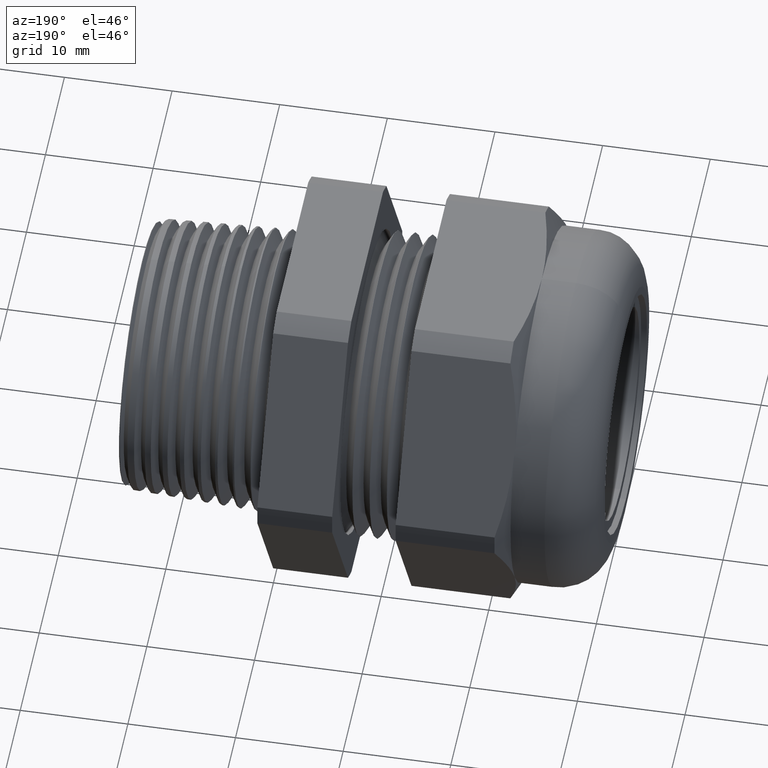
[diagram: clean part render]
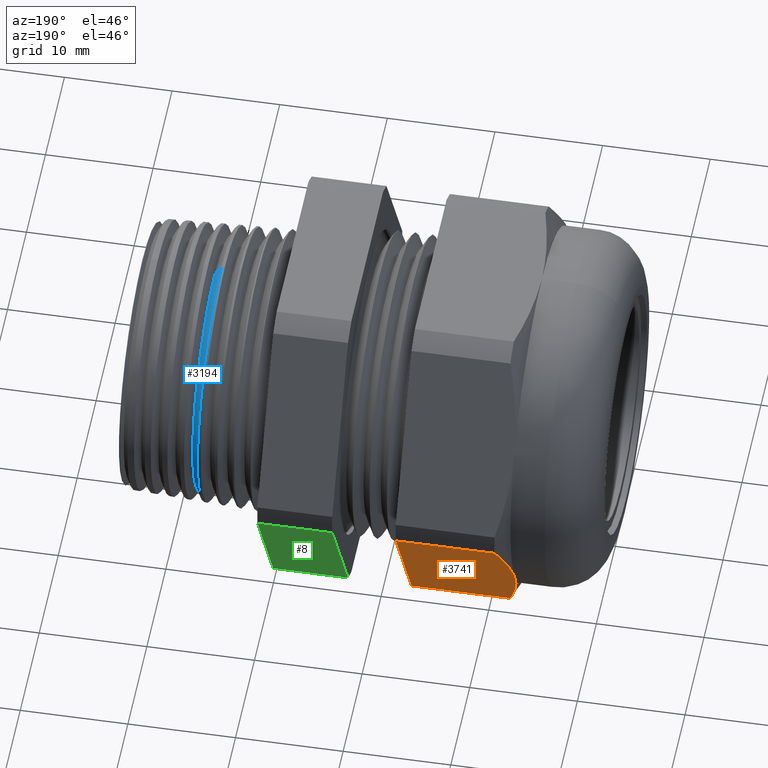
[diagram: same view with three faces highlighted in distinct colors, each labeled with its STEP entity id]
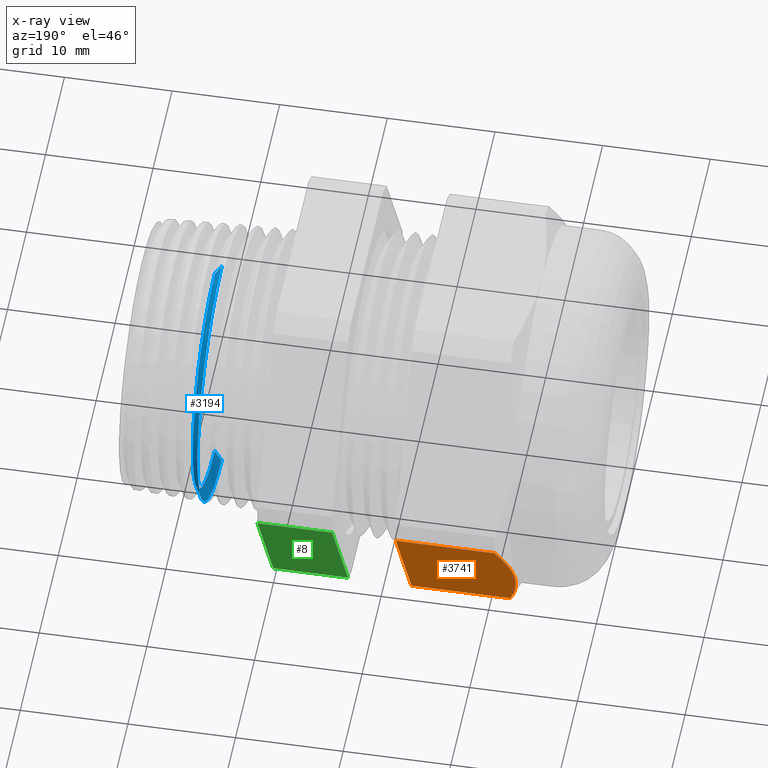
[diagram: x-ray of the same camera — body ghosted, the three highlighted faces saturated]
A machine part, auxiliary view with three faces highlighted in distinct colors.
The next image is the same camera in x-ray (body ghosted, the three faces saturated) — at least one of them is partly hidden behind the body in this view.
Their STEP definitions:

[orange] entity #3741 — the highlighted planar face has unit normal (0, 0.866, -0.5).
#158 = VERTEX_POINT ( 'NONE', #217 ) ;
#217 = CARTESIAN_POINT ( 'NONE',  ( -0.8674666790032094000, 0.3989927496919443200, -0.6089242856819405700 ) ) ;
#243 = CARTESIAN_POINT ( 'NONE',  ( -0.5058333333333336900, 0.7268402752278256800, -0.04107571431805931400 ) ) ;
#244 = DIRECTION ( 'NONE',  ( 1.000000000000000000, 0.0000000000000000000, 0.0000000000000000000 ) ) ;
#245 = VECTOR ( 'NONE', #244, 39.37007874015748100 ) ;
#246 = CARTESIAN_POINT ( 'NONE',  ( -2.992185896283379200, 0.7268402752278256800, -0.04107571431805931400 ) ) ;
#247 = LINE ( 'NONE', #246, #245 ) ;
#285 = CARTESIAN_POINT ( 'NONE',  ( -0.8674666790032094000, 0.7268402752278256800, -0.04107571431805931400 ) ) ;
#318 = DIRECTION ( 'NONE',  ( 1.000000000000000000, 0.0000000000000000000, 0.0000000000000000000 ) ) ;
#319 = VECTOR ( 'NONE', #318, 39.37007874015748100 ) ;
#320 = CARTESIAN_POINT ( 'NONE',  ( -2.992185896283379200, 0.3989927496919443200, -0.6089242856819405700 ) ) ;
#321 = LINE ( 'NONE', #320, #319 ) ;
#326 = CARTESIAN_POINT ( 'NONE',  ( -0.5058333333333336900, 0.3989927496919443200, -0.6089242856819405700 ) ) ;
#454 = EDGE_CURVE ( 'NONE', #1452, #544, #247, .T. ) ;
#544 = VERTEX_POINT ( 'NONE', #243 ) ;
#956 = CARTESIAN_POINT ( 'NONE',  ( -0.9125000000000002000, 0.5629165124598849400, -0.3250000000000000100 ) ) ;
#1452 = VERTEX_POINT ( 'NONE', #285 ) ;
#1531 = VERTEX_POINT ( 'NONE', #326 ) ;
#1590 = EDGE_CURVE ( 'NONE', #158, #1531, #321, .T. ) ;
#1780 = CARTESIAN_POINT ( 'NONE',  ( -0.5058333333333334700, 0.7020415124598851100, -0.08402843139697985200 ) ) ;
#1786 = LINE ( 'NONE', #1780, #1840 ) ;
#1839 = DIRECTION ( 'NONE',  ( 0.0000000000000000000, -0.5000000000000001100, -0.8660254037844386000 ) ) ;
#1840 = VECTOR ( 'NONE', #1839, 39.37007874015748100 ) ;
#2219 = PLANE ( 'NONE',  #2264 ) ;
#2220 = B_SPLINE_CURVE_WITH_KNOTS ( 'NONE', 3,
 ( #2270, #2269, #2268, #2267, #2266, #2265 ),
 .UNSPECIFIED., .F., .F.,
 ( 4, 2, 4 ),
 ( 2.361308568637535600E-007, 0.004201502711991006300, 0.008402769293125150100 ),
 .UNSPECIFIED. ) ;
#2221 = CARTESIAN_POINT ( 'NONE',  ( -0.8674666790032094000, 0.7268402752278256800, -0.04107571431805931400 ) ) ;
#2222 = CARTESIAN_POINT ( 'NONE',  ( -0.8814205714001794900, 0.7000062718228488000, -0.08755357158595557200 ) ) ;
#2223 = CARTESIAN_POINT ( 'NONE',  ( -0.8927551590989975000, 0.6729577337251738700, -0.1344030138415911500 ) ) ;
#2224 = CARTESIAN_POINT ( 'NONE',  ( -0.9044328033704853700, 0.6319488438240191700, -0.2054324947123890000 ) ) ;
#2225 = CARTESIAN_POINT ( 'NONE',  ( -0.9074375322794260300, 0.6182064968433949000, -0.2292349378980707600 ) ) ;
#2226 = CARTESIAN_POINT ( 'NONE',  ( -0.9114778356147180700, 0.5905605188772369300, -0.2771191763603865200 ) ) ;
#2227 = CARTESIAN_POINT ( 'NONE',  ( -0.9125000000000003100, 0.5766899915409092700, -0.3011436344346789500 ) ) ;
#2228 = CARTESIAN_POINT ( 'NONE',  ( -0.9125000000000002000, 0.5629165124598849400, -0.3250000000000000100 ) ) ;
#2229 = FACE_OUTER_BOUND ( 'NONE', #3726, .T. ) ;
#2230 = B_SPLINE_CURVE_WITH_KNOTS ( 'NONE', 3,
 ( #2228, #2227, #2226, #2225, #2224, #2223, #2222, #2221 ),
 .UNSPECIFIED., .F., .F.,
 ( 4, 2, 2, 4 ),
 ( 0.008402769293125150100, 0.01048919587064709600, 0.01257562244816904200, 0.01674847560321293300 ),
 .UNSPECIFIED. ) ;
#2261 = DIRECTION ( 'NONE',  ( 0.0000000000000000000, 0.5000000000000001100, 0.8660254037844386000 ) ) ;
#2262 = DIRECTION ( 'NONE',  ( 0.0000000000000000000, 0.8660254037844386000, -0.5000000000000001100 ) ) ;
#2263 = CARTESIAN_POINT ( 'NONE',  ( -2.992185896283379200, 0.3989927496919443200, -0.6089242856819405700 ) ) ;
#2264 = AXIS2_PLACEMENT_3D ( 'NONE', #2263, #2262, #2261 ) ;
#2265 = CARTESIAN_POINT ( 'NONE',  ( -0.9125000000000002000, 0.5629165124598849400, -0.3250000000000000100 ) ) ;
#2266 = CARTESIAN_POINT ( 'NONE',  ( -0.9124999999999999800, 0.5351819839639028200, -0.3730376124790081300 ) ) ;
#2267 = CARTESIAN_POINT ( 'NONE',  ( -0.9083465192945222600, 0.5076765033783839900, -0.4206785023397254800 ) ) ;
#2268 = CARTESIAN_POINT ( 'NONE',  ( -0.8928224553762587100, 0.4530635366525173100, -0.5152709354609955600 ) ) ;
#2269 = CARTESIAN_POINT ( 'NONE',  ( -0.8814868053153364100, 0.4259541240880422300, -0.5622258153860121300 ) ) ;
#2270 = CARTESIAN_POINT ( 'NONE',  ( -0.8674666790032094000, 0.3989927496919443200, -0.6089242856819405700 ) ) ;
#2805 = VERTEX_POINT ( 'NONE', #956 ) ;
#3506 = ORIENTED_EDGE ( 'NONE', *, *, #3508, .T. ) ;
#3508 = EDGE_CURVE ( 'NONE', #544, #1531, #1786, .T. ) ;
#3509 = ORIENTED_EDGE ( 'NONE', *, *, #454, .T. ) ;
#3726 = EDGE_LOOP ( 'NONE', ( #3736, #3735, #3733, #3509, #3506 ) ) ;
#3733 = ORIENTED_EDGE ( 'NONE', *, *, #3734, .T. ) ;
#3734 = EDGE_CURVE ( 'NONE', #2805, #1452, #2230, .T. ) ;
#3735 = ORIENTED_EDGE ( 'NONE', *, *, #3737, .T. ) ;
#3736 = ORIENTED_EDGE ( 'NONE', *, *, #1590, .F. ) ;
#3737 = EDGE_CURVE ( 'NONE', #158, #2805, #2220, .T. ) ;
#3741 = ADVANCED_FACE ( 'NONE', ( #2229 ), #2219, .T. ) ;

[blue] entity #3194 — the highlighted conical surface has half-angle 60 deg.
#1525 = CARTESIAN_POINT ( 'NONE',  ( 0.2838319270764287400, 0.0000000000000000000, 0.4598654850007971600 ) ) ;
#1681 = CARTESIAN_POINT ( 'NONE',  ( 0.2838319270764287400, 5.900216056759259800E-017, -0.4598654850007971600 ) ) ;
#1682 = DIRECTION ( 'NONE',  ( 0.0000000000000000000, 0.0000000000000000000, 1.000000000000000000 ) ) ;
#1683 = DIRECTION ( 'NONE',  ( -1.000000000000000000, 0.0000000000000000000, 0.0000000000000000000 ) ) ;
#1684 = CARTESIAN_POINT ( 'NONE',  ( 0.2838319270764287400, 0.0000000000000000000, 0.0000000000000000000 ) ) ;
#1685 = AXIS2_PLACEMENT_3D ( 'NONE', #1684, #1683, #1682 ) ;
#1686 = CIRCLE ( 'NONE', #1685, 0.4598654850007971600 ) ;
#1697 = DIRECTION ( 'NONE',  ( -0.4999999999999956700, 0.0000000000000000000, 0.8660254037844411500 ) ) ;
#1698 = VECTOR ( 'NONE', #1697, 39.37007874015748100 ) ;
#1699 = CARTESIAN_POINT ( 'NONE',  ( 0.2519999999999998900, 0.0000000000000000000, 0.5150000000000000100 ) ) ;
#1700 = LINE ( 'NONE', #1699, #1698 ) ;
#1701 = CARTESIAN_POINT ( 'NONE',  ( 0.2585165977617130400, 0.0000000000000000000, 0.5037129215842230900 ) ) ;
#1702 = DIRECTION ( 'NONE',  ( 0.0000000000000000000, 0.0000000000000000000, 1.000000000000000000 ) ) ;
#1703 = DIRECTION ( 'NONE',  ( 1.000000000000000000, 0.0000000000000000000, 0.0000000000000000000 ) ) ;
#1704 = CARTESIAN_POINT ( 'NONE',  ( 0.2585165977617130400, 0.0000000000000000000, 0.0000000000000000000 ) ) ;
#1705 = AXIS2_PLACEMENT_3D ( 'NONE', #1704, #1703, #1702 ) ;
#1706 = CIRCLE ( 'NONE', #1705, 0.5037129215842230900 ) ;
#1707 = CARTESIAN_POINT ( 'NONE',  ( 0.2585165977617130400, 6.171929757632379500E-017, -0.5037129215842230900 ) ) ;
#1708 = DIRECTION ( 'NONE',  ( -0.4999999999999956700, 1.060575238724910100E-016, -0.8660254037844411500 ) ) ;
#1709 = VECTOR ( 'NONE', #1708, 39.37007874015748100 ) ;
#1710 = CARTESIAN_POINT ( 'NONE',  ( 0.2519999999999998900, 6.306931015608869800E-017, -0.5150000000000000100 ) ) ;
#1711 = DIRECTION ( 'NONE',  ( 0.0000000000000000000, 0.0000000000000000000, 1.000000000000000000 ) ) ;
#1712 = DIRECTION ( 'NONE',  ( -1.000000000000000000, 0.0000000000000000000, 0.0000000000000000000 ) ) ;
#1713 = CARTESIAN_POINT ( 'NONE',  ( 0.2519999999999998900, 0.0000000000000000000, 0.0000000000000000000 ) ) ;
#1714 = AXIS2_PLACEMENT_3D ( 'NONE', #1713, #1712, #1711 ) ;
#1715 = LINE ( 'NONE', #1710, #1709 ) ;
#1716 = CONICAL_SURFACE ( 'NONE', #1714, 0.5150000000000000100, 1.047197551196602700 ) ;
#1717 = FACE_OUTER_BOUND ( 'NONE', #3170, .T. ) ;
#3135 = VERTEX_POINT ( 'NONE', #1525 ) ;
#3170 = EDGE_LOOP ( 'NONE', ( #3195, #3196, #3199, #3202 ) ) ;
#3181 = EDGE_CURVE ( 'NONE', #3135, #3182, #1686, .T. ) ;
#3182 = VERTEX_POINT ( 'NONE', #1681 ) ;
#3194 = ADVANCED_FACE ( 'NONE', ( #1717 ), #1716, .T. ) ;
#3195 = ORIENTED_EDGE ( 'NONE', *, *, #3181, .T. ) ;
#3196 = ORIENTED_EDGE ( 'NONE', *, *, #3197, .T. ) ;
#3197 = EDGE_CURVE ( 'NONE', #3182, #3198, #1715, .T. ) ;
#3198 = VERTEX_POINT ( 'NONE', #1707 ) ;
#3199 = ORIENTED_EDGE ( 'NONE', *, *, #3200, .T. ) ;
#3200 = EDGE_CURVE ( 'NONE', #3198, #3201, #1706, .T. ) ;
#3201 = VERTEX_POINT ( 'NONE', #1701 ) ;
#3202 = ORIENTED_EDGE ( 'NONE', *, *, #3203, .F. ) ;
#3203 = EDGE_CURVE ( 'NONE', #3135, #3201, #1700, .T. ) ;

[green] entity #8 — the highlighted planar face has unit normal (0, 0.866, -0.5).
#3 = ORIENTED_EDGE ( 'NONE', *, *, #3543, .F. ) ;
#5 = ORIENTED_EDGE ( 'NONE', *, *, #2897, .F. ) ;
#6 = ORIENTED_EDGE ( 'NONE', *, *, #3537, .T. ) ;
#7 = ORIENTED_EDGE ( 'NONE', *, *, #2958, .T. ) ;
#8 = ADVANCED_FACE ( 'NONE', ( #3234 ), #3233, .T. ) ;
#1058 = CARTESIAN_POINT ( 'NONE',  ( 0.0000000000000000000, 0.3989927496919443200, -0.6089242856819405700 ) ) ;
#1064 = CARTESIAN_POINT ( 'NONE',  ( 0.0000000000000000000, 0.7268402752278256800, -0.04107571431805931400 ) ) ;
#1105 = DIRECTION ( 'NONE',  ( 0.0000000000000000000, 0.5000000000000001100, 0.8660254037844386000 ) ) ;
#1106 = VECTOR ( 'NONE', #1105, 39.37007874015748100 ) ;
#1107 = CARTESIAN_POINT ( 'NONE',  ( 0.0000000000000000000, 0.3989927496919443200, -0.6089242856819405700 ) ) ;
#1108 = LINE ( 'NONE', #1107, #1106 ) ;
#1208 = DIRECTION ( 'NONE',  ( 0.0000000000000000000, 0.5000000000000001100, 0.8660254037844386000 ) ) ;
#1209 = VECTOR ( 'NONE', #1208, 39.37007874015748100 ) ;
#1210 = CARTESIAN_POINT ( 'NONE',  ( -0.2736318407960199300, 0.7020415124598851100, -0.08402843139697985200 ) ) ;
#1217 = LINE ( 'NONE', #1210, #1209 ) ;
#1841 = LINE ( 'NONE', #1903, #1902 ) ;
#1842 = CARTESIAN_POINT ( 'NONE',  ( -0.2736318407960199300, 0.3989927496919443200, -0.6089242856819406800 ) ) ;
#1849 = DIRECTION ( 'NONE',  ( 1.000000000000000000, 0.0000000000000000000, 0.0000000000000000000 ) ) ;
#1850 = VECTOR ( 'NONE', #1849, 39.37007874015748100 ) ;
#1851 = CARTESIAN_POINT ( 'NONE',  ( -2.992185896283379200, 0.7268402752278256800, -0.04107571431805931400 ) ) ;
#1852 = LINE ( 'NONE', #1851, #1850 ) ;
#1853 = CARTESIAN_POINT ( 'NONE',  ( -0.2736318407960202100, 0.7268402752278256800, -0.04107571431805931400 ) ) ;
#1901 = DIRECTION ( 'NONE',  ( 1.000000000000000000, 0.0000000000000000000, 0.0000000000000000000 ) ) ;
#1902 = VECTOR ( 'NONE', #1901, 39.37007874015748100 ) ;
#1903 = CARTESIAN_POINT ( 'NONE',  ( -2.992185896283379200, 0.3989927496919443200, -0.6089242856819405700 ) ) ;
#2848 = VERTEX_POINT ( 'NONE', #1058 ) ;
#2887 = VERTEX_POINT ( 'NONE', #1064 ) ;
#2897 = EDGE_CURVE ( 'NONE', #2848, #2887, #1108, .T. ) ;
#2958 = EDGE_CURVE ( 'NONE', #3542, #3535, #1217, .T. ) ;
#3229 = DIRECTION ( 'NONE',  ( 0.0000000000000000000, 0.5000000000000001100, 0.8660254037844386000 ) ) ;
#3230 = DIRECTION ( 'NONE',  ( 0.0000000000000000000, 0.8660254037844386000, -0.5000000000000001100 ) ) ;
#3231 = CARTESIAN_POINT ( 'NONE',  ( -2.992185896283379200, 0.3989927496919443200, -0.6089242856819405700 ) ) ;
#3232 = AXIS2_PLACEMENT_3D ( 'NONE', #3231, #3230, #3229 ) ;
#3233 = PLANE ( 'NONE',  #3232 ) ;
#3234 = FACE_OUTER_BOUND ( 'NONE', #3715, .T. ) ;
#3535 = VERTEX_POINT ( 'NONE', #1853 ) ;
#3537 = EDGE_CURVE ( 'NONE', #3535, #2887, #1852, .T. ) ;
#3542 = VERTEX_POINT ( 'NONE', #1842 ) ;
#3543 = EDGE_CURVE ( 'NONE', #3542, #2848, #1841, .T. ) ;
#3715 = EDGE_LOOP ( 'NONE', ( #7, #6, #5, #3 ) ) ;